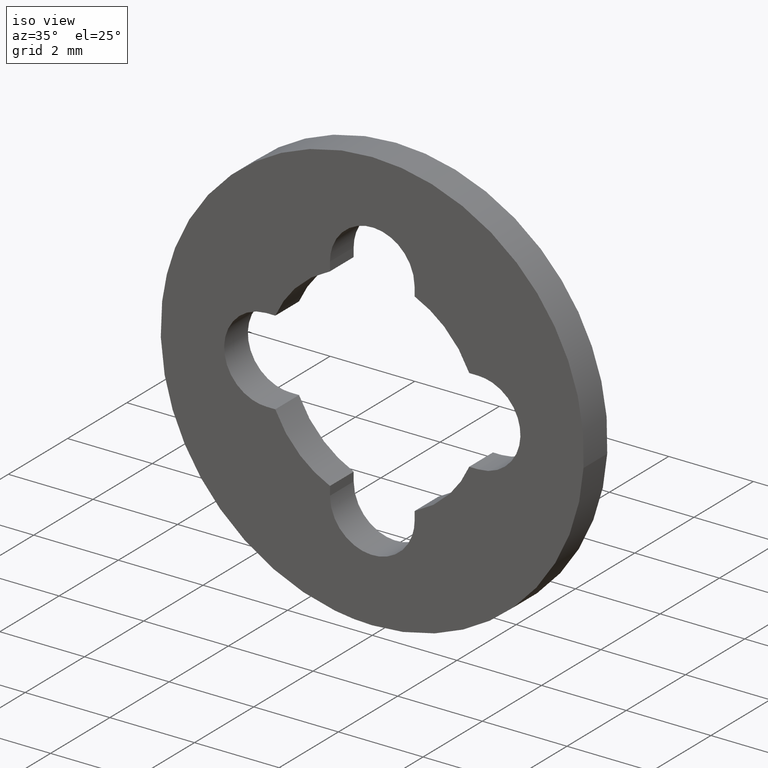
[diagram: clean part render]
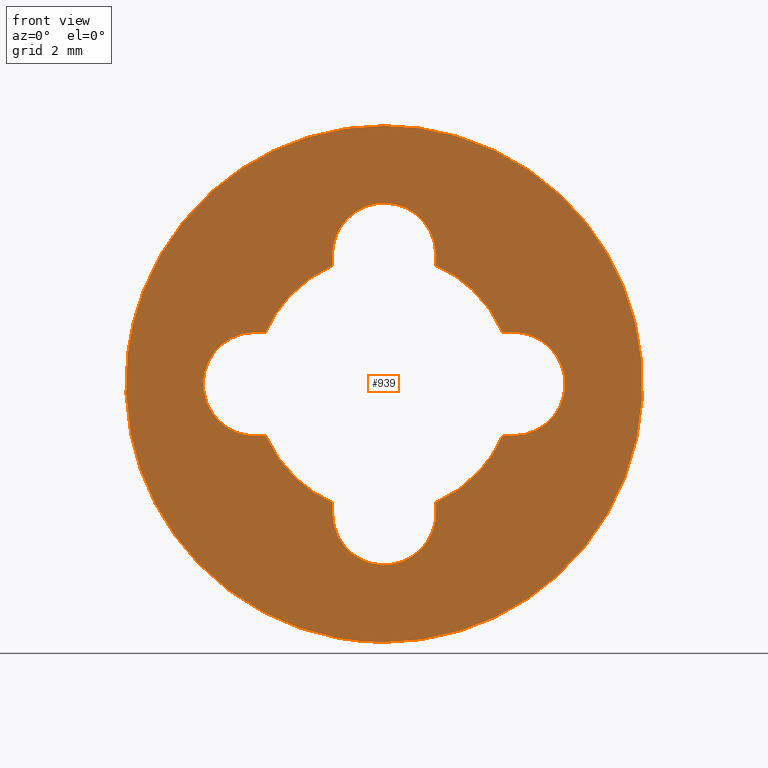
[diagram: tour spotlight — one face highlighted and labeled with its STEP entity id]
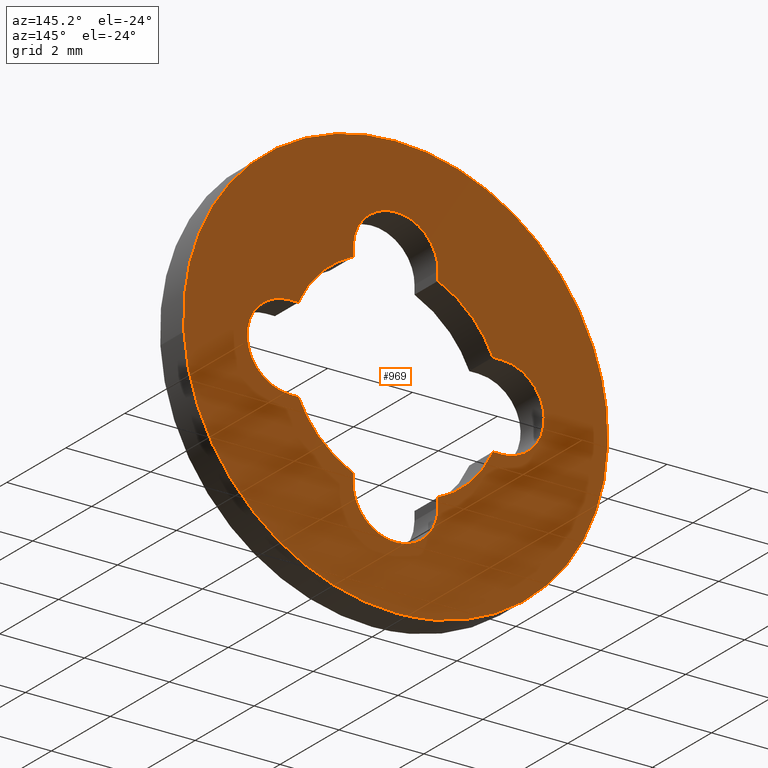
[diagram: tour spotlight — one face highlighted and labeled with its STEP entity id]
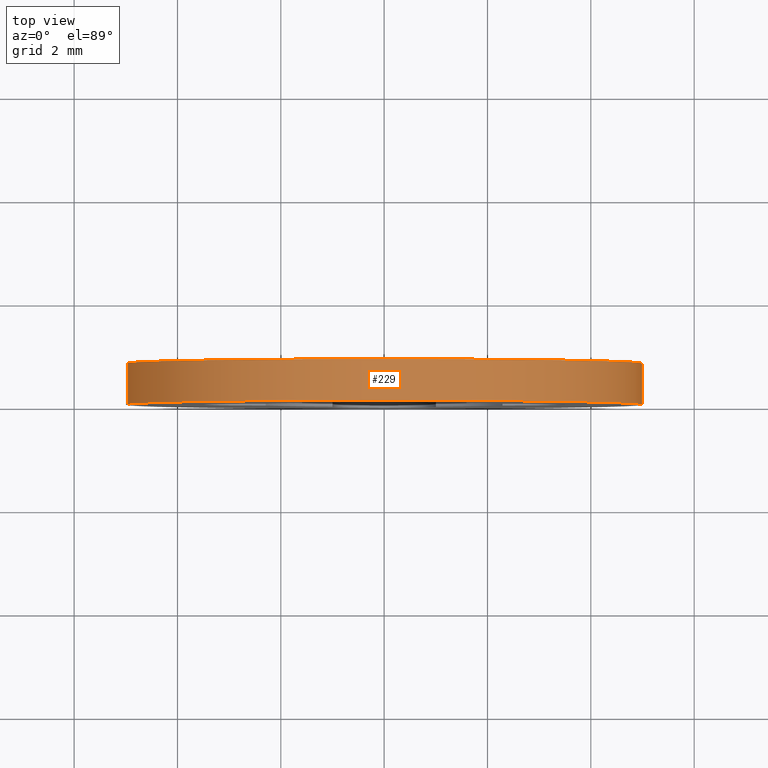
[diagram: tour spotlight — one face highlighted and labeled with its STEP entity id]
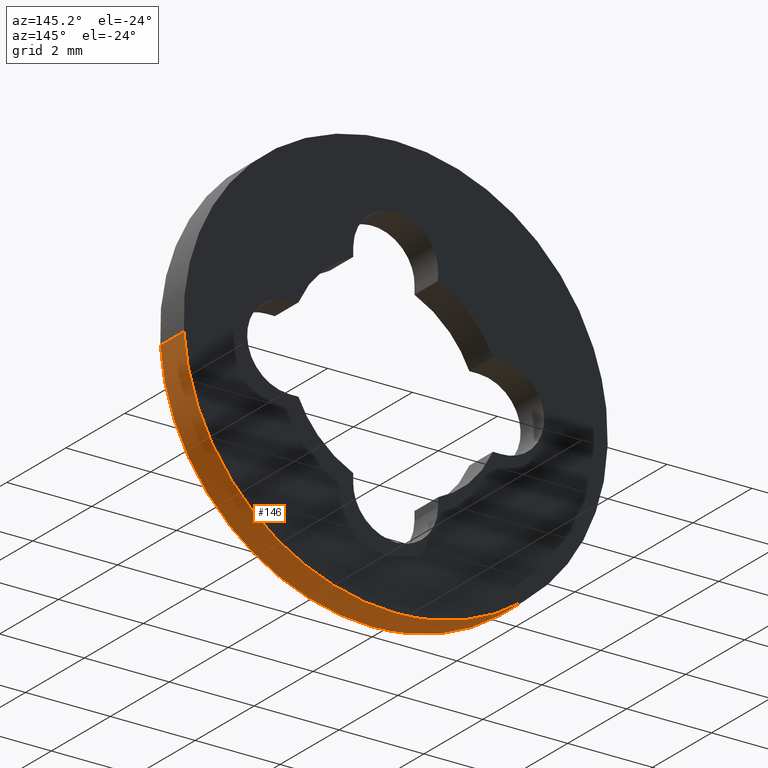
[diagram: tour spotlight — one face highlighted and labeled with its STEP entity id]
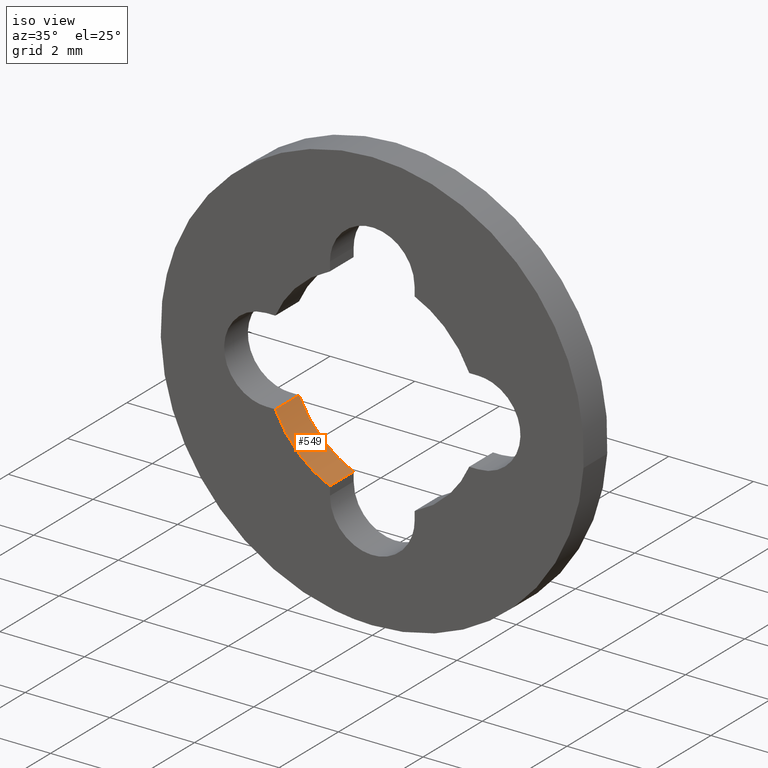
[diagram: tour spotlight — one face highlighted and labeled with its STEP entity id]
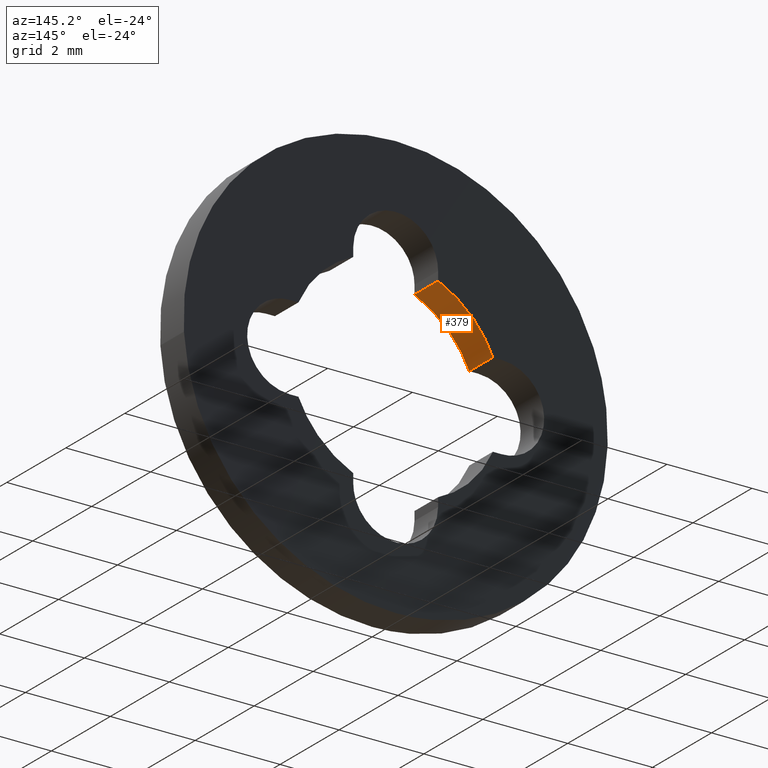
[diagram: tour spotlight — one face highlighted and labeled with its STEP entity id]
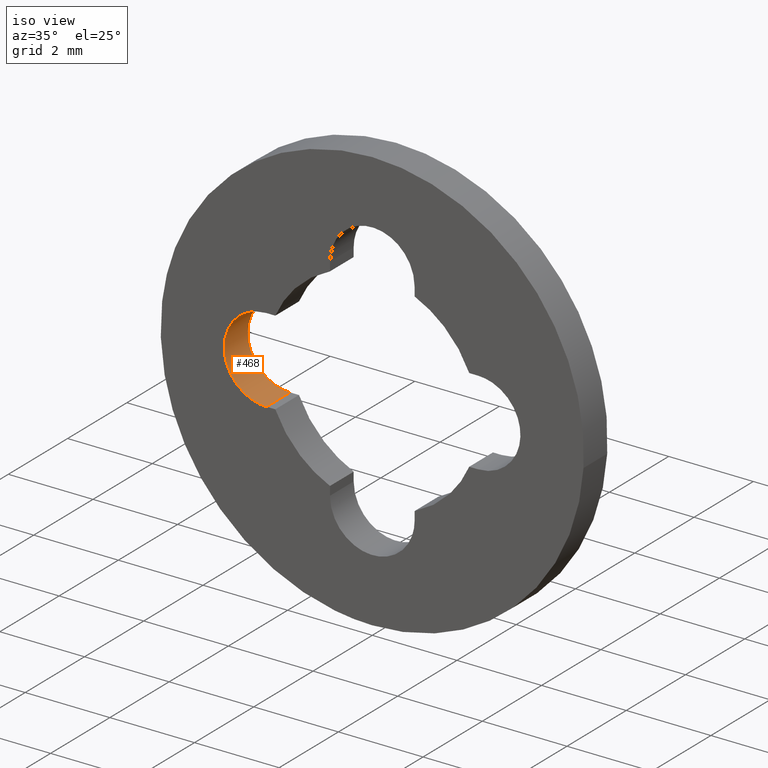
[diagram: tour spotlight — one face highlighted and labeled with its STEP entity id]
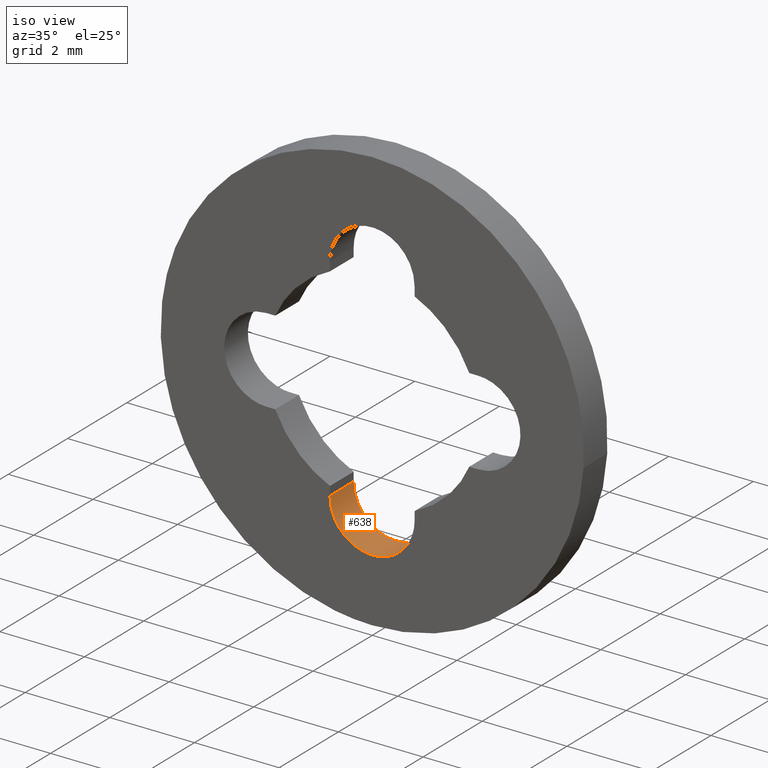
[diagram: tour spotlight — one face highlighted and labeled with its STEP entity id]
A machine part: a face-by-face anatomy tour. The part has 20 B-rep faces; the first image is the clean iso view, then the 8 largest visible faces are spotlighted one at a time (largest first), each with its STEP entity span.

Face 1 — front view, entity #939. In plain terms, the highlighted face is a freeform B-spline surface patch.
Definition (entity closure, byte-faithful):
#66=CARTESIAN_POINT('',(-4.965048007634929,3.045997E-014,0.590168011561354));
#67=VERTEX_POINT('',#66);
#68=CARTESIAN_POINT('',(0.0,0.0,-5.0));
#69=VERTEX_POINT('',#68);
#70=CARTESIAN_POINT('',(-4.965048007634929,3.045997E-014,0.590168011561354));
#71=CARTESIAN_POINT('',(-5.000000000000001,0.0,0.296119000685819));
#72=CARTESIAN_POINT('',(-5.0,0.0,0.0));
#73=CARTESIAN_POINT('',(-5.000000000000001,0.0,-5.000000000000001));
#74=CARTESIAN_POINT('',(0.0,0.0,-5.0));
#82=(BOUNDED_CURVE()B_SPLINE_CURVE(2,(#70,#71,#72,#73,#74),.UNSPECIFIED.,.F.,.U.)B_SPLINE_CURVE_WITH_KNOTS((3,2,3),(0.229562581136241,0.250000000000000,0.500000000000000),.UNSPECIFIED.)CURVE()GEOMETRIC_REPRESENTATION_ITEM()RATIONAL_B_SPLINE_CURVE((0.956026965128767,0.976056074419019,1.0,0.707106781186548,1.0))REPRESENTATION_ITEM(''));
#83=EDGE_CURVE('',#67,#69,#82,.T.);
#124=CARTESIAN_POINT('',(4.990674101339240,2.014708E-014,-0.305240911770624));
#125=VERTEX_POINT('',#124);
#131=CARTESIAN_POINT('',(0.0,0.0,-5.0));
#132=CARTESIAN_POINT('',(4.703532020823824,0.0,-4.999999999999999));
#133=CARTESIAN_POINT('',(4.990674101339240,2.014708E-014,-0.305240911770624));
#141=(BOUNDED_CURVE()B_SPLINE_CURVE(2,(#131,#132,#133),.UNSPECIFIED.,.F.,.U.)B_SPLINE_CURVE_WITH_KNOTS((3,3),(0.500000000000000,0.739333023987528),.UNSPECIFIED.)CURVE()GEOMETRIC_REPRESENTATION_ITEM()RATIONAL_B_SPLINE_CURVE((1.0,0.719603920943743,0.976072174005725))REPRESENTATION_ITEM(''));
#142=EDGE_CURVE('',#69,#125,#141,.T.);
#165=CARTESIAN_POINT('',(0.0,0.0,5.0));
#166=VERTEX_POINT('',#165);
#167=CARTESIAN_POINT('',(0.0,0.0,5.0));
#168=CARTESIAN_POINT('',(-4.440875477595059,0.0,5.000000000000001));
#169=CARTESIAN_POINT('',(-4.965048007634929,3.045997E-014,0.590168011561354));
#177=(BOUNDED_CURVE()B_SPLINE_CURVE(2,(#167,#168,#169),.UNSPECIFIED.,.F.,.U.)B_SPLINE_CURVE_WITH_KNOTS((3,3),(0.0,0.229562581136241),.UNSPECIFIED.)CURVE()GEOMETRIC_REPRESENTATION_ITEM()RATIONAL_B_SPLINE_CURVE((1.0,0.731050706767529,0.956026965128767))REPRESENTATION_ITEM(''));
#178=EDGE_CURVE('',#166,#67,#177,.T.);
#180=CARTESIAN_POINT('',(4.990674101339240,2.014708E-014,-0.305240911770624));
#181=CARTESIAN_POINT('',(5.000000000000001,0.0,-0.152762921037389));
#182=CARTESIAN_POINT('',(5.0,0.0,0.0));
#183=CARTESIAN_POINT('',(5.000000000000001,0.0,5.000000000000001));
#184=CARTESIAN_POINT('',(0.0,0.0,5.0));
#192=(BOUNDED_CURVE()B_SPLINE_CURVE(2,(#180,#181,#182,#183,#184),.UNSPECIFIED.,.F.,.U.)B_SPLINE_CURVE_WITH_KNOTS((3,2,3),(0.739333023987528,0.750000000000000,1.0),.UNSPECIFIED.)CURVE()GEOMETRIC_REPRESENTATION_ITEM()RATIONAL_B_SPLINE_CURVE((0.976072174005725,0.987502860242804,1.0,0.707106781186548,1.0))REPRESENTATION_ITEM(''));
#193=EDGE_CURVE('',#125,#166,#192,.T.);
#248=CARTESIAN_POINT('',(1.0,0.0,2.500000000000000));
#249=VERTEX_POINT('',#248);
#250=CARTESIAN_POINT('',(-1.0,0.0,2.500000000000000));
#251=VERTEX_POINT('',#250);
#252=CARTESIAN_POINT('',(1.0,0.0,2.500000000000000));
#253=CARTESIAN_POINT('',(1.0,0.0,3.499999999999999));
#254=CARTESIAN_POINT('',(0.0,0.0,3.500000000000000));
#255=CARTESIAN_POINT('',(-1.0,0.0,3.499999999999999));
#256=CARTESIAN_POINT('',(-1.0,0.0,2.500000000000000));
#264=(BOUNDED_CURVE()B_SPLINE_CURVE(2,(#252,#253,#254,#255,#256),.UNSPECIFIED.,.F.,.U.)B_SPLINE_CURVE_WITH_KNOTS((3,2,3),(0.0,0.500000000000000,1.0),.UNSPECIFIED.)CURVE()GEOMETRIC_REPRESENTATION_ITEM()RATIONAL_B_SPLINE_CURVE((1.0,0.707106781186548,1.0,0.707106781186548,1.0))REPRESENTATION_ITEM(''));
#265=EDGE_CURVE('',#249,#251,#264,.T.);
#304=CARTESIAN_POINT('',(-1.0,0.0,2.291287847477920));
#305=VERTEX_POINT('',#304);
#306=CARTESIAN_POINT('',(-1.0,0.0,2.291287847477920));
#307=CARTESIAN_POINT('',(-1.0,0.0,2.500000000000000));
#308=QUASI_UNIFORM_CURVE('',1,(#306,#307),.UNSPECIFIED.,.F.,.U.);
#309=EDGE_CURVE('',#305,#251,#308,.T.);
#341=CARTESIAN_POINT('',(-2.291287847477920,0.0,1.0));
#342=VERTEX_POINT('',#341);
#343=CARTESIAN_POINT('',(-1.000000000000000,0.0,2.291287847477920));
#344=CARTESIAN_POINT('',(-1.898952716879295,0.0,1.898952716879295));
#345=CARTESIAN_POINT('',(-2.291287847477920,0.0,1.000000000000000));
#353=(BOUNDED_CURVE()B_SPLINE_CURVE(2,(#343,#344,#345),.UNSPECIFIED.,.F.,.U.)CURVE()GEOMETRIC_REPRESENTATION_ITEM()QUASI_UNIFORM_CURVE()RATIONAL_B_SPLINE_CURVE((1.0,0.930916782315405,1.0))REPRESENTATION_ITEM(''));
#354=EDGE_CURVE('',#305,#342,#353,.T.);
#385=CARTESIAN_POINT('',(-2.500000000000000,0.0,1.0));
#386=VERTEX_POINT('',#385);
#387=CARTESIAN_POINT('',(-2.500000000000000,0.0,1.0));
#388=CARTESIAN_POINT('',(-2.291287847477920,0.0,1.0));
#389=QUASI_UNIFORM_CURVE('',1,(#387,#388),.UNSPECIFIED.,.F.,.U.);
#390=EDGE_CURVE('',#386,#342,#389,.T.);
#426=CARTESIAN_POINT('',(-2.500000000000000,0.0,-1.0));
#427=VERTEX_POINT('',#426);
#428=CARTESIAN_POINT('',(-2.500000000000000,0.0,1.0));
#429=CARTESIAN_POINT('',(-3.499999999999999,0.0,1.0));
#430=CARTESIAN_POINT('',(-3.500000000000000,0.0,0.0));
#431=CARTESIAN_POINT('',(-3.499999999999999,0.0,-1.0));
#432=CARTESIAN_POINT('',(-2.500000000000000,0.0,-1.0));
#440=(BOUNDED_CURVE()B_SPLINE_CURVE(2,(#428,#429,#430,#431,#432),.UNSPECIFIED.,.F.,.U.)B_SPLINE_CURVE_WITH_KNOTS((3,2,3),(0.0,0.500000000000000,1.0),.UNSPECIFIED.)CURVE()GEOMETRIC_REPRESENTATION_ITEM()RATIONAL_B_SPLINE_CURVE((1.0,0.707106781186548,1.0,0.707106781186548,1.0))REPRESENTATION_ITEM(''));
#441=EDGE_CURVE('',#386,#427,#440,.T.);
#474=CARTESIAN_POINT('',(-2.291287847477920,0.0,-1.0));
#475=VERTEX_POINT('',#474);
#476=CARTESIAN_POINT('',(-2.291287847477920,0.0,-1.0));
#477=CARTESIAN_POINT('',(-2.500000000000000,0.0,-1.0));
#478=QUASI_UNIFORM_CURVE('',1,(#476,#477),.UNSPECIFIED.,.F.,.U.);
#479=EDGE_CURVE('',#475,#427,#478,.T.);
#511=CARTESIAN_POINT('',(-1.0,0.0,-2.291287847477920));
#512=VERTEX_POINT('',#511);
#513=CARTESIAN_POINT('',(-2.291287847477920,0.0,-1.000000000000000));
#514=CARTESIAN_POINT('',(-1.898952716879295,0.0,-1.898952716879295));
#515=CARTESIAN_POINT('',(-1.0,0.0,-2.291287847477920));
#523=(BOUNDED_CURVE()B_SPLINE_CURVE(2,(#513,#514,#515),.UNSPECIFIED.,.F.,.U.)CURVE()GEOMETRIC_REPRESENTATION_ITEM()QUASI_UNIFORM_CURVE()RATIONAL_B_SPLINE_CURVE((1.0,0.930916782315405,1.0))REPRESENTATION_ITEM(''));
#524=EDGE_CURVE('',#475,#512,#523,.T.);
#555=CARTESIAN_POINT('',(-1.0,0.0,-2.500000000000000));
#556=VERTEX_POINT('',#555);
#557=CARTESIAN_POINT('',(-1.0,0.0,-2.500000000000000));
#558=CARTESIAN_POINT('',(-1.0,0.0,-2.291287847477920));
#559=QUASI_UNIFORM_CURVE('',1,(#557,#558),.UNSPECIFIED.,.F.,.U.);
#560=EDGE_CURVE('',#556,#512,#559,.T.);
#596=CARTESIAN_POINT('',(1.0,0.0,-2.500000000000000));
#597=VERTEX_POINT('',#596);
#598=CARTESIAN_POINT('',(-1.0,0.0,-2.500000000000000));
#599=CARTESIAN_POINT('',(-1.0,0.0,-3.499999999999999));
#600=CARTESIAN_POINT('',(0.0,0.0,-3.500000000000000));
#601=CARTESIAN_POINT('',(1.0,0.0,-3.499999999999999));
#602=CARTESIAN_POINT('',(1.0,0.0,-2.500000000000000));
#610=(BOUNDED_CURVE()B_SPLINE_CURVE(2,(#598,#599,#600,#601,#602),.UNSPECIFIED.,.F.,.U.)B_SPLINE_CURVE_WITH_KNOTS((3,2,3),(0.0,0.500000000000000,1.0),.UNSPECIFIED.)CURVE()GEOMETRIC_REPRESENTATION_ITEM()RATIONAL_B_SPLINE_CURVE((1.0,0.707106781186548,1.0,0.707106781186548,1.0))REPRESENTATION_ITEM(''));
#611=EDGE_CURVE('',#556,#597,#610,.T.);
#644=CARTESIAN_POINT('',(1.0,0.0,-2.291287847477920));
#645=VERTEX_POINT('',#644);
#646=CARTESIAN_POINT('',(1.0,0.0,-2.291287847477920));
#647=CARTESIAN_POINT('',(1.0,0.0,-2.500000000000000));
#648=QUASI_UNIFORM_CURVE('',1,(#646,#647),.UNSPECIFIED.,.F.,.U.);
#649=EDGE_CURVE('',#645,#597,#648,.T.);
#681=CARTESIAN_POINT('',(2.291287847477920,0.0,-1.0));
#682=VERTEX_POINT('',#681);
#683=CARTESIAN_POINT('',(0.999999999999999,0.0,-2.291287847477920));
#684=CARTESIAN_POINT('',(1.898952716879295,0.0,-1.898952716879295));
#685=CARTESIAN_POINT('',(2.291287847477920,0.0,-1.0));
#693=(BOUNDED_CURVE()B_SPLINE_CURVE(2,(#683,#684,#685),.UNSPECIFIED.,.F.,.U.)CURVE()GEOMETRIC_REPRESENTATION_ITEM()QUASI_UNIFORM_CURVE()RATIONAL_B_SPLINE_CURVE((1.0,0.930916782315405,1.0))REPRESENTATION_ITEM(''));
#694=EDGE_CURVE('',#645,#682,#693,.T.);
#725=CARTESIAN_POINT('',(2.500000000000000,0.0,-1.0));
#726=VERTEX_POINT('',#725);
#727=CARTESIAN_POINT('',(2.500000000000000,0.0,-1.0));
#728=CARTESIAN_POINT('',(2.291287847477920,0.0,-1.0));
#729=QUASI_UNIFORM_CURVE('',1,(#727,#728),.UNSPECIFIED.,.F.,.U.);
#730=EDGE_CURVE('',#726,#682,#729,.T.);
#766=CARTESIAN_POINT('',(2.500000000000000,0.0,1.0));
#767=VERTEX_POINT('',#766);
#768=CARTESIAN_POINT('',(2.500000000000000,0.0,-1.0));
#769=CARTESIAN_POINT('',(3.499999999999999,0.0,-1.0));
#770=CARTESIAN_POINT('',(3.500000000000000,0.0,0.0));
#771=CARTESIAN_POINT('',(3.499999999999999,0.0,1.0));
#772=CARTESIAN_POINT('',(2.500000000000000,0.0,1.0));
#780=(BOUNDED_CURVE()B_SPLINE_CURVE(2,(#768,#769,#770,#771,#772),.UNSPECIFIED.,.F.,.U.)B_SPLINE_CURVE_WITH_KNOTS((3,2,3),(0.0,0.500000000000000,1.0),.UNSPECIFIED.)CURVE()GEOMETRIC_REPRESENTATION_ITEM()RATIONAL_B_SPLINE_CURVE((1.0,0.707106781186548,1.0,0.707106781186548,1.0))REPRESENTATION_ITEM(''));
#781=EDGE_CURVE('',#726,#767,#780,.T.);
#814=CARTESIAN_POINT('',(2.291287847477920,0.0,1.0));
#815=VERTEX_POINT('',#814);
#816=CARTESIAN_POINT('',(2.291287847477920,0.0,1.0));
#817=CARTESIAN_POINT('',(2.500000000000000,0.0,1.0));
#818=QUASI_UNIFORM_CURVE('',1,(#816,#817),.UNSPECIFIED.,.F.,.U.);
#819=EDGE_CURVE('',#815,#767,#818,.T.);
#851=CARTESIAN_POINT('',(1.0,0.0,2.291287847477920));
#852=VERTEX_POINT('',#851);
#853=CARTESIAN_POINT('',(2.291287847477920,0.0,0.999999999999999));
#854=CARTESIAN_POINT('',(1.898952716879294,0.0,1.898952716879294));
#855=CARTESIAN_POINT('',(1.0,0.0,2.291287847477920));
#863=(BOUNDED_CURVE()B_SPLINE_CURVE(2,(#853,#854,#855),.UNSPECIFIED.,.F.,.U.)CURVE()GEOMETRIC_REPRESENTATION_ITEM()QUASI_UNIFORM_CURVE()RATIONAL_B_SPLINE_CURVE((1.0,0.930916782315405,1.0))REPRESENTATION_ITEM(''));
#864=EDGE_CURVE('',#815,#852,#863,.T.);
#895=CARTESIAN_POINT('',(1.0,0.0,2.500000000000000));
#896=CARTESIAN_POINT('',(1.0,0.0,2.291287847477920));
#897=QUASI_UNIFORM_CURVE('',1,(#895,#896),.UNSPECIFIED.,.F.,.U.);
#898=EDGE_CURVE('',#249,#852,#897,.T.);
#910=CARTESIAN_POINT('',(-5.499409322677550,0.0,5.499499980618060));
#911=CARTESIAN_POINT('',(5.499378298459944,0.0,5.499499980618060));
#912=CARTESIAN_POINT('',(-5.499409322677550,0.0,-5.499500248838961));
#913=CARTESIAN_POINT('',(5.499378298459944,0.0,-5.499500248838961));
#914=B_SPLINE_SURFACE_WITH_KNOTS('',1,1,((#910,#912),(#911,#913)),.UNSPECIFIED.,.F.,.F.,.U.,(2,2),(2,2),(0.0,10.998787621137501),(0.0,10.999000229457019),.UNSPECIFIED.);
#915=ORIENTED_EDGE('',*,*,#178,.T.);
#916=ORIENTED_EDGE('',*,*,#83,.T.);
#917=ORIENTED_EDGE('',*,*,#142,.T.);
#918=ORIENTED_EDGE('',*,*,#193,.T.);
#919=EDGE_LOOP('',(#915,#916,#917,#918));
#920=FACE_OUTER_BOUND('',#919,.T.);
#921=ORIENTED_EDGE('',*,*,#265,.F.);
#922=ORIENTED_EDGE('',*,*,#898,.T.);
#923=ORIENTED_EDGE('',*,*,#864,.F.);
#924=ORIENTED_EDGE('',*,*,#819,.T.);
#925=ORIENTED_EDGE('',*,*,#781,.F.);
#926=ORIENTED_EDGE('',*,*,#730,.T.);
#927=ORIENTED_EDGE('',*,*,#694,.F.);
#928=ORIENTED_EDGE('',*,*,#649,.T.);
#929=ORIENTED_EDGE('',*,*,#611,.F.);
#930=ORIENTED_EDGE('',*,*,#560,.T.);
#931=ORIENTED_EDGE('',*,*,#524,.F.);
#932=ORIENTED_EDGE('',*,*,#479,.T.);
#933=ORIENTED_EDGE('',*,*,#441,.F.);
#934=ORIENTED_EDGE('',*,*,#390,.T.);
#935=ORIENTED_EDGE('',*,*,#354,.F.);
#936=ORIENTED_EDGE('',*,*,#309,.T.);
#937=EDGE_LOOP('',(#921,#922,#923,#924,#925,#926,#927,#928,#929,#930,#931,#932,#933,#934,#935,#936));
#938=FACE_BOUND('',#937,.T.);
#939=ADVANCED_FACE('',(#920,#938),#914,.F.);

Face 2 — auxiliary view, entity #969. In plain terms, the highlighted face is a freeform B-spline surface patch.
Definition (entity closure, byte-faithful):
#85=CARTESIAN_POINT('',(-4.965048002999415,0.800000000000023,0.590168050559857));
#86=VERTEX_POINT('',#85);
#92=CARTESIAN_POINT('',(0.0,0.800000000000023,-5.0));
#93=VERTEX_POINT('',#92);
#94=CARTESIAN_POINT('',(-4.965048002999415,0.800000000000023,0.590168050559856));
#95=CARTESIAN_POINT('',(-5.0,0.800000000000023,0.296119020391210));
#96=CARTESIAN_POINT('',(-5.0,0.800000000000023,0.0));
#97=CARTESIAN_POINT('',(-5.000000000000001,0.800000000000023,-5.000000000000001));
#98=CARTESIAN_POINT('',(0.0,0.800000000000023,-5.0));
#106=(BOUNDED_CURVE()B_SPLINE_CURVE(2,(#94,#95,#96,#97,#98),.UNSPECIFIED.,.F.,.U.)B_SPLINE_CURVE_WITH_KNOTS((3,2,3),(0.229562579808786,0.250000000000000,0.500000000000000),.UNSPECIFIED.)CURVE()GEOMETRIC_REPRESENTATION_ITEM()RATIONAL_B_SPLINE_CURVE((0.956026962526900,0.976056072863809,1.0,0.707106781186548,1.0))REPRESENTATION_ITEM(''));
#107=EDGE_CURVE('',#86,#93,#106,.T.);
#109=CARTESIAN_POINT('',(4.990674099992546,0.800000000000023,-0.305240933789139));
#110=VERTEX_POINT('',#109);
#111=CARTESIAN_POINT('',(0.0,0.800000000000023,-5.0));
#112=CARTESIAN_POINT('',(4.703532000033385,0.800000000000023,-5.000000000000001));
#113=CARTESIAN_POINT('',(4.990674099992546,0.800000000000023,-0.305240933789139));
#121=(BOUNDED_CURVE()B_SPLINE_CURVE(2,(#111,#112,#113),.UNSPECIFIED.,.F.,.U.)B_SPLINE_CURVE_WITH_KNOTS((3,3),(0.500000000000000,0.739333023226263),.UNSPECIFIED.)CURVE()GEOMETRIC_REPRESENTATION_ITEM()RATIONAL_B_SPLINE_CURVE((1.0,0.719603921835620,0.976072172374189))REPRESENTATION_ITEM(''));
#122=EDGE_CURVE('',#93,#110,#121,.T.);
#196=CARTESIAN_POINT('',(0.0,0.800000000000023,5.0));
#197=VERTEX_POINT('',#196);
#198=CARTESIAN_POINT('',(4.990674099992546,0.800000000000023,-0.305240933789139));
#199=CARTESIAN_POINT('',(4.999999999999999,0.800000000000023,-0.152762932077514));
#200=CARTESIAN_POINT('',(5.0,0.800000000000023,0.0));
#201=CARTESIAN_POINT('',(5.000000000000001,0.800000000000023,5.000000000000001));
#202=CARTESIAN_POINT('',(0.0,0.800000000000023,5.0));
#210=(BOUNDED_CURVE()B_SPLINE_CURVE(2,(#198,#199,#200,#201,#202),.UNSPECIFIED.,.F.,.U.)B_SPLINE_CURVE_WITH_KNOTS((3,2,3),(0.739333023226263,0.750000000000000,1.0),.UNSPECIFIED.)CURVE()GEOMETRIC_REPRESENTATION_ITEM()RATIONAL_B_SPLINE_CURVE((0.976072172374189,0.987502859350927,1.0,0.707106781186548,1.0))REPRESENTATION_ITEM(''));
#211=EDGE_CURVE('',#110,#197,#210,.T.);
#213=CARTESIAN_POINT('',(0.0,0.800000000000023,5.0));
#214=CARTESIAN_POINT('',(-4.440875442468178,0.800000000000023,5.0));
#215=CARTESIAN_POINT('',(-4.965048002999415,0.800000000000023,0.590168050559856));
#223=(BOUNDED_CURVE()B_SPLINE_CURVE(2,(#213,#214,#215),.UNSPECIFIED.,.F.,.U.)B_SPLINE_CURVE_WITH_KNOTS((3,3),(0.0,0.229562579808786),.UNSPECIFIED.)CURVE()GEOMETRIC_REPRESENTATION_ITEM()RATIONAL_B_SPLINE_CURVE((1.0,0.731050708322738,0.956026962526900))REPRESENTATION_ITEM(''));
#224=EDGE_CURVE('',#197,#86,#223,.T.);
#267=CARTESIAN_POINT('',(-1.0,0.800000000000023,2.500000000000000));
#268=VERTEX_POINT('',#267);
#274=CARTESIAN_POINT('',(1.0,0.800000000000023,2.500000000000000));
#275=VERTEX_POINT('',#274);
#276=CARTESIAN_POINT('',(1.0,0.800000000000023,2.500000000000000));
#277=CARTESIAN_POINT('',(1.0,0.800000000000023,3.499999999999999));
#278=CARTESIAN_POINT('',(0.0,0.800000000000023,3.500000000000000));
#279=CARTESIAN_POINT('',(-1.0,0.800000000000023,3.499999999999999));
#280=CARTESIAN_POINT('',(-1.0,0.800000000000023,2.500000000000000));
#288=(BOUNDED_CURVE()B_SPLINE_CURVE(2,(#276,#277,#278,#279,#280),.UNSPECIFIED.,.F.,.U.)B_SPLINE_CURVE_WITH_KNOTS((3,2,3),(0.0,0.500000000000000,1.0),.UNSPECIFIED.)CURVE()GEOMETRIC_REPRESENTATION_ITEM()RATIONAL_B_SPLINE_CURVE((1.0,0.707106781186548,1.0,0.707106781186548,1.0))REPRESENTATION_ITEM(''));
#289=EDGE_CURVE('',#275,#268,#288,.T.);
#311=CARTESIAN_POINT('',(-1.0,0.800000000000023,2.291287847477920));
#312=VERTEX_POINT('',#311);
#318=CARTESIAN_POINT('',(-1.0,0.800000000000023,2.291287847477920));
#319=CARTESIAN_POINT('',(-1.0,0.800000000000023,2.500000000000000));
#320=QUASI_UNIFORM_CURVE('',1,(#318,#319),.UNSPECIFIED.,.F.,.U.);
#321=EDGE_CURVE('',#312,#268,#320,.T.);
#356=CARTESIAN_POINT('',(-2.291287847477920,0.800000000000023,1.0));
#357=VERTEX_POINT('',#356);
#363=CARTESIAN_POINT('',(-1.000000000000000,0.800000000000023,2.291287847477920));
#364=CARTESIAN_POINT('',(-1.898952716879295,0.800000000000023,1.898952716879295));
#365=CARTESIAN_POINT('',(-2.291287847477920,0.800000000000023,1.000000000000000));
#373=(BOUNDED_CURVE()B_SPLINE_CURVE(2,(#363,#364,#365),.UNSPECIFIED.,.F.,.U.)CURVE()GEOMETRIC_REPRESENTATION_ITEM()QUASI_UNIFORM_CURVE()RATIONAL_B_SPLINE_CURVE((1.0,0.930916782315405,1.0))REPRESENTATION_ITEM(''));
#374=EDGE_CURVE('',#312,#357,#373,.T.);
#392=CARTESIAN_POINT('',(-2.500000000000000,0.800000000000023,1.0));
#393=VERTEX_POINT('',#392);
#399=CARTESIAN_POINT('',(-2.500000000000000,0.800000000000023,1.0));
#400=CARTESIAN_POINT('',(-2.291287847477920,0.800000000000023,1.0));
#401=QUASI_UNIFORM_CURVE('',1,(#399,#400),.UNSPECIFIED.,.F.,.U.);
#402=EDGE_CURVE('',#393,#357,#401,.T.);
#443=CARTESIAN_POINT('',(-2.500000000000000,0.800000000000023,-1.0));
#444=VERTEX_POINT('',#443);
#450=CARTESIAN_POINT('',(-2.500000000000000,0.800000000000023,1.0));
#451=CARTESIAN_POINT('',(-3.499999999999999,0.800000000000023,1.0));
#452=CARTESIAN_POINT('',(-3.500000000000000,0.800000000000023,0.0));
#453=CARTESIAN_POINT('',(-3.499999999999999,0.800000000000023,-1.0));
#454=CARTESIAN_POINT('',(-2.500000000000000,0.800000000000023,-1.0));
#462=(BOUNDED_CURVE()B_SPLINE_CURVE(2,(#450,#451,#452,#453,#454),.UNSPECIFIED.,.F.,.U.)B_SPLINE_CURVE_WITH_KNOTS((3,2,3),(0.0,0.500000000000000,1.0),.UNSPECIFIED.)CURVE()GEOMETRIC_REPRESENTATION_ITEM()RATIONAL_B_SPLINE_CURVE((1.0,0.707106781186548,1.0,0.707106781186548,1.0))REPRESENTATION_ITEM(''));
#463=EDGE_CURVE('',#393,#444,#462,.T.);
#481=CARTESIAN_POINT('',(-2.291287847477920,0.800000000000023,-1.0));
#482=VERTEX_POINT('',#481);
#488=CARTESIAN_POINT('',(-2.291287847477920,0.800000000000023,-1.0));
#489=CARTESIAN_POINT('',(-2.500000000000000,0.800000000000023,-1.0));
#490=QUASI_UNIFORM_CURVE('',1,(#488,#489),.UNSPECIFIED.,.F.,.U.);
#491=EDGE_CURVE('',#482,#444,#490,.T.);
#526=CARTESIAN_POINT('',(-1.0,0.800000000000023,-2.291287847477920));
#527=VERTEX_POINT('',#526);
#533=CARTESIAN_POINT('',(-2.291287847477920,0.800000000000023,-1.000000000000000));
#534=CARTESIAN_POINT('',(-1.898952716879295,0.800000000000023,-1.898952716879295));
#535=CARTESIAN_POINT('',(-1.0,0.800000000000023,-2.291287847477920));
#543=(BOUNDED_CURVE()B_SPLINE_CURVE(2,(#533,#534,#535),.UNSPECIFIED.,.F.,.U.)CURVE()GEOMETRIC_REPRESENTATION_ITEM()QUASI_UNIFORM_CURVE()RATIONAL_B_SPLINE_CURVE((1.0,0.930916782315405,1.0))REPRESENTATION_ITEM(''));
#544=EDGE_CURVE('',#482,#527,#543,.T.);
#562=CARTESIAN_POINT('',(-1.0,0.800000000000023,-2.500000000000000));
#563=VERTEX_POINT('',#562);
#569=CARTESIAN_POINT('',(-1.0,0.800000000000023,-2.500000000000000));
#570=CARTESIAN_POINT('',(-1.0,0.800000000000023,-2.291287847477920));
#571=QUASI_UNIFORM_CURVE('',1,(#569,#570),.UNSPECIFIED.,.F.,.U.);
#572=EDGE_CURVE('',#563,#527,#571,.T.);
#613=CARTESIAN_POINT('',(1.0,0.800000000000023,-2.500000000000000));
#614=VERTEX_POINT('',#613);
#620=CARTESIAN_POINT('',(-1.0,0.800000000000023,-2.500000000000000));
#621=CARTESIAN_POINT('',(-1.0,0.800000000000023,-3.499999999999999));
#622=CARTESIAN_POINT('',(0.0,0.800000000000023,-3.500000000000000));
#623=CARTESIAN_POINT('',(1.0,0.800000000000023,-3.499999999999999));
#624=CARTESIAN_POINT('',(1.0,0.800000000000023,-2.500000000000000));
#632=(BOUNDED_CURVE()B_SPLINE_CURVE(2,(#620,#621,#622,#623,#624),.UNSPECIFIED.,.F.,.U.)B_SPLINE_CURVE_WITH_KNOTS((3,2,3),(0.0,0.500000000000000,1.0),.UNSPECIFIED.)CURVE()GEOMETRIC_REPRESENTATION_ITEM()RATIONAL_B_SPLINE_CURVE((1.0,0.707106781186548,1.0,0.707106781186548,1.0))REPRESENTATION_ITEM(''));
#633=EDGE_CURVE('',#563,#614,#632,.T.);
#651=CARTESIAN_POINT('',(1.0,0.800000000000023,-2.291287847477920));
#652=VERTEX_POINT('',#651);
#658=CARTESIAN_POINT('',(1.0,0.800000000000023,-2.291287847477920));
#659=CARTESIAN_POINT('',(1.0,0.800000000000023,-2.500000000000000));
#660=QUASI_UNIFORM_CURVE('',1,(#658,#659),.UNSPECIFIED.,.F.,.U.);
#661=EDGE_CURVE('',#652,#614,#660,.T.);
#696=CARTESIAN_POINT('',(2.291287847477920,0.800000000000023,-1.0));
#697=VERTEX_POINT('',#696);
#703=CARTESIAN_POINT('',(0.999999999999999,0.800000000000023,-2.291287847477920));
#704=CARTESIAN_POINT('',(1.898952716879295,0.800000000000023,-1.898952716879295));
#705=CARTESIAN_POINT('',(2.291287847477920,0.800000000000023,-1.0));
#713=(BOUNDED_CURVE()B_SPLINE_CURVE(2,(#703,#704,#705),.UNSPECIFIED.,.F.,.U.)CURVE()GEOMETRIC_REPRESENTATION_ITEM()QUASI_UNIFORM_CURVE()RATIONAL_B_SPLINE_CURVE((1.0,0.930916782315405,1.0))REPRESENTATION_ITEM(''));
#714=EDGE_CURVE('',#652,#697,#713,.T.);
#732=CARTESIAN_POINT('',(2.500000000000000,0.800000000000023,-1.0));
#733=VERTEX_POINT('',#732);
#739=CARTESIAN_POINT('',(2.500000000000000,0.800000000000023,-1.0));
#740=CARTESIAN_POINT('',(2.291287847477920,0.800000000000023,-1.0));
#741=QUASI_UNIFORM_CURVE('',1,(#739,#740),.UNSPECIFIED.,.F.,.U.);
#742=EDGE_CURVE('',#733,#697,#741,.T.);
#783=CARTESIAN_POINT('',(2.500000000000000,0.800000000000023,1.0));
#784=VERTEX_POINT('',#783);
#790=CARTESIAN_POINT('',(2.500000000000000,0.800000000000023,-1.0));
#791=CARTESIAN_POINT('',(3.499999999999999,0.800000000000023,-1.0));
#792=CARTESIAN_POINT('',(3.500000000000000,0.800000000000023,0.0));
#793=CARTESIAN_POINT('',(3.499999999999999,0.800000000000023,1.0));
#794=CARTESIAN_POINT('',(2.500000000000000,0.800000000000023,1.0));
#802=(BOUNDED_CURVE()B_SPLINE_CURVE(2,(#790,#791,#792,#793,#794),.UNSPECIFIED.,.F.,.U.)B_SPLINE_CURVE_WITH_KNOTS((3,2,3),(0.0,0.500000000000000,1.0),.UNSPECIFIED.)CURVE()GEOMETRIC_REPRESENTATION_ITEM()RATIONAL_B_SPLINE_CURVE((1.0,0.707106781186548,1.0,0.707106781186548,1.0))REPRESENTATION_ITEM(''));
#803=EDGE_CURVE('',#733,#784,#802,.T.);
#821=CARTESIAN_POINT('',(2.291287847477920,0.800000000000023,1.0));
#822=VERTEX_POINT('',#821);
#828=CARTESIAN_POINT('',(2.291287847477920,0.800000000000023,1.0));
#829=CARTESIAN_POINT('',(2.500000000000000,0.800000000000023,1.0));
#830=QUASI_UNIFORM_CURVE('',1,(#828,#829),.UNSPECIFIED.,.F.,.U.);
#831=EDGE_CURVE('',#822,#784,#830,.T.);
#866=CARTESIAN_POINT('',(1.0,0.800000000000023,2.291287847477920));
#867=VERTEX_POINT('',#866);
#873=CARTESIAN_POINT('',(2.291287847477920,0.800000000000023,0.999999999999999));
#874=CARTESIAN_POINT('',(1.898952716879294,0.800000000000023,1.898952716879294));
#875=CARTESIAN_POINT('',(1.0,0.800000000000023,2.291287847477920));
#883=(BOUNDED_CURVE()B_SPLINE_CURVE(2,(#873,#874,#875),.UNSPECIFIED.,.F.,.U.)CURVE()GEOMETRIC_REPRESENTATION_ITEM()QUASI_UNIFORM_CURVE()RATIONAL_B_SPLINE_CURVE((1.0,0.930916782315405,1.0))REPRESENTATION_ITEM(''));
#884=EDGE_CURVE('',#822,#867,#883,.T.);
#901=CARTESIAN_POINT('',(1.0,0.800000000000023,2.500000000000000));
#902=CARTESIAN_POINT('',(1.0,0.800000000000023,2.291287847477920));
#903=QUASI_UNIFORM_CURVE('',1,(#901,#902),.UNSPECIFIED.,.F.,.U.);
#904=EDGE_CURVE('',#275,#867,#903,.T.);
#940=CARTESIAN_POINT('',(-5.499409322677554,0.800000000000000,5.499499980618060));
#941=CARTESIAN_POINT('',(5.499378298459948,0.800000000000000,5.499499980618060));
#942=CARTESIAN_POINT('',(-5.499409322677554,0.800000000000000,-5.499500248838961));
#943=CARTESIAN_POINT('',(5.499378298459948,0.800000000000000,-5.499500248838961));
#944=B_SPLINE_SURFACE_WITH_KNOTS('',1,1,((#940,#942),(#941,#943)),.UNSPECIFIED.,.F.,.F.,.U.,(2,2),(2,2),(0.0,10.998787621137501),(0.0,10.999000229457019),.UNSPECIFIED.);
#945=ORIENTED_EDGE('',*,*,#211,.F.);
#946=ORIENTED_EDGE('',*,*,#122,.F.);
#947=ORIENTED_EDGE('',*,*,#107,.F.);
#948=ORIENTED_EDGE('',*,*,#224,.F.);
#949=EDGE_LOOP('',(#945,#946,#947,#948));
#950=FACE_OUTER_BOUND('',#949,.T.);
#951=ORIENTED_EDGE('',*,*,#904,.F.);
#952=ORIENTED_EDGE('',*,*,#289,.T.);
#953=ORIENTED_EDGE('',*,*,#321,.F.);
#954=ORIENTED_EDGE('',*,*,#374,.T.);
#955=ORIENTED_EDGE('',*,*,#402,.F.);
#956=ORIENTED_EDGE('',*,*,#463,.T.);
#957=ORIENTED_EDGE('',*,*,#491,.F.);
#958=ORIENTED_EDGE('',*,*,#544,.T.);
#959=ORIENTED_EDGE('',*,*,#572,.F.);
#960=ORIENTED_EDGE('',*,*,#633,.T.);
#961=ORIENTED_EDGE('',*,*,#661,.F.);
#962=ORIENTED_EDGE('',*,*,#714,.T.);
#963=ORIENTED_EDGE('',*,*,#742,.F.);
#964=ORIENTED_EDGE('',*,*,#803,.T.);
#965=ORIENTED_EDGE('',*,*,#831,.F.);
#966=ORIENTED_EDGE('',*,*,#884,.T.);
#967=EDGE_LOOP('',(#951,#952,#953,#954,#955,#956,#957,#958,#959,#960,#961,#962,#963,#964,#965,#966));
#968=FACE_BOUND('',#967,.T.);
#969=ADVANCED_FACE('',(#950,#968),#944,.T.);

Face 3 — top view, entity #229. In plain terms, the highlighted face is a freeform B-spline surface patch.
Definition (entity closure, byte-faithful):
#66=CARTESIAN_POINT('',(-4.965048007634929,3.045997E-014,0.590168011561354));
#67=VERTEX_POINT('',#66);
#85=CARTESIAN_POINT('',(-4.965048002999415,0.800000000000023,0.590168050559857));
#86=VERTEX_POINT('',#85);
#87=CARTESIAN_POINT('',(-4.965048002999415,0.800000000000023,0.590168050559857));
#88=CARTESIAN_POINT('',(-4.965048007634929,3.045997E-014,0.590168011561354));
#89=QUASI_UNIFORM_CURVE('',1,(#87,#88),.UNSPECIFIED.,.F.,.U.);
#90=EDGE_CURVE('',#86,#67,#89,.T.);
#109=CARTESIAN_POINT('',(4.990674099992546,0.800000000000023,-0.305240933789139));
#110=VERTEX_POINT('',#109);
#124=CARTESIAN_POINT('',(4.990674101339240,2.014708E-014,-0.305240911770624));
#125=VERTEX_POINT('',#124);
#126=CARTESIAN_POINT('',(4.990674099992546,0.800000000000023,-0.305240933789139));
#127=CARTESIAN_POINT('',(4.990674101339240,2.014708E-014,-0.305240911770624));
#128=QUASI_UNIFORM_CURVE('',1,(#126,#127),.UNSPECIFIED.,.F.,.U.);
#129=EDGE_CURVE('',#110,#125,#128,.T.);
#147=CARTESIAN_POINT('',(4.990673992109334,0.820000000000024,-0.305242697674285));
#148=CARTESIAN_POINT('',(5.295916689783620,0.820000000000024,4.685431294435048));
#149=CARTESIAN_POINT('',(0.305242697674285,0.820000000000024,4.990673992109334));
#150=CARTESIAN_POINT('',(-4.407717454197504,0.820000000000024,5.278930983662638));
#151=CARTESIAN_POINT('',(-4.965047631818332,0.820000000000024,0.590171173283792));
#152=CARTESIAN_POINT('',(4.990673992109334,-0.020500000000001,-0.305242697674285));
#153=CARTESIAN_POINT('',(5.295916689783620,-0.020500000000001,4.685431294435048));
#154=CARTESIAN_POINT('',(0.305242697674285,-0.020500000000001,4.990673992109334));
#155=CARTESIAN_POINT('',(-4.407717454197504,-0.020500000000001,5.278930983662638));
#156=CARTESIAN_POINT('',(-4.965047631818332,-0.020500000000001,0.590171173283792));
#164=(BOUNDED_SURFACE()B_SPLINE_SURFACE(2,1,((#147,#152),(#148,#153),(#149,#154),(#150,#155),(#151,#156)),.UNSPECIFIED.,.F.,.F.,.U.)B_SPLINE_SURFACE_WITH_KNOTS((3,2,3),(2,2),(0.0,8.284271247461899,16.237171645025320),(0.0,1.0),.UNSPECIFIED.)GEOMETRIC_REPRESENTATION_ITEM()RATIONAL_B_SPLINE_SURFACE(((1.0,1.0),(0.707106781186548,0.707106781186548),(1.0,1.0),(0.718822509939086,0.718822509939086),(0.977505800795127,0.977505800795127)))REPRESENTATION_ITEM('')SURFACE());
#165=CARTESIAN_POINT('',(0.0,0.0,5.0));
#166=VERTEX_POINT('',#165);
#167=CARTESIAN_POINT('',(0.0,0.0,5.0));
#168=CARTESIAN_POINT('',(-4.440875477595059,0.0,5.000000000000001));
#169=CARTESIAN_POINT('',(-4.965048007634929,3.045997E-014,0.590168011561354));
#177=(BOUNDED_CURVE()B_SPLINE_CURVE(2,(#167,#168,#169),.UNSPECIFIED.,.F.,.U.)B_SPLINE_CURVE_WITH_KNOTS((3,3),(0.0,0.229562581136241),.UNSPECIFIED.)CURVE()GEOMETRIC_REPRESENTATION_ITEM()RATIONAL_B_SPLINE_CURVE((1.0,0.731050706767529,0.956026965128767))REPRESENTATION_ITEM(''));
#178=EDGE_CURVE('',#166,#67,#177,.T.);
#179=ORIENTED_EDGE('',*,*,#178,.F.);
#180=CARTESIAN_POINT('',(4.990674101339240,2.014708E-014,-0.305240911770624));
#181=CARTESIAN_POINT('',(5.000000000000001,0.0,-0.152762921037389));
#182=CARTESIAN_POINT('',(5.0,0.0,0.0));
#183=CARTESIAN_POINT('',(5.000000000000001,0.0,5.000000000000001));
#184=CARTESIAN_POINT('',(0.0,0.0,5.0));
#192=(BOUNDED_CURVE()B_SPLINE_CURVE(2,(#180,#181,#182,#183,#184),.UNSPECIFIED.,.F.,.U.)B_SPLINE_CURVE_WITH_KNOTS((3,2,3),(0.739333023987528,0.750000000000000,1.0),.UNSPECIFIED.)CURVE()GEOMETRIC_REPRESENTATION_ITEM()RATIONAL_B_SPLINE_CURVE((0.976072174005725,0.987502860242804,1.0,0.707106781186548,1.0))REPRESENTATION_ITEM(''));
#193=EDGE_CURVE('',#125,#166,#192,.T.);
#194=ORIENTED_EDGE('',*,*,#193,.F.);
#195=ORIENTED_EDGE('',*,*,#129,.F.);
#196=CARTESIAN_POINT('',(0.0,0.800000000000023,5.0));
#197=VERTEX_POINT('',#196);
#198=CARTESIAN_POINT('',(4.990674099992546,0.800000000000023,-0.305240933789139));
#199=CARTESIAN_POINT('',(4.999999999999999,0.800000000000023,-0.152762932077514));
#200=CARTESIAN_POINT('',(5.0,0.800000000000023,0.0));
#201=CARTESIAN_POINT('',(5.000000000000001,0.800000000000023,5.000000000000001));
#202=CARTESIAN_POINT('',(0.0,0.800000000000023,5.0));
#210=(BOUNDED_CURVE()B_SPLINE_CURVE(2,(#198,#199,#200,#201,#202),.UNSPECIFIED.,.F.,.U.)B_SPLINE_CURVE_WITH_KNOTS((3,2,3),(0.739333023226263,0.750000000000000,1.0),.UNSPECIFIED.)CURVE()GEOMETRIC_REPRESENTATION_ITEM()RATIONAL_B_SPLINE_CURVE((0.976072172374189,0.987502859350927,1.0,0.707106781186548,1.0))REPRESENTATION_ITEM(''));
#211=EDGE_CURVE('',#110,#197,#210,.T.);
#212=ORIENTED_EDGE('',*,*,#211,.T.);
#213=CARTESIAN_POINT('',(0.0,0.800000000000023,5.0));
#214=CARTESIAN_POINT('',(-4.440875442468178,0.800000000000023,5.0));
#215=CARTESIAN_POINT('',(-4.965048002999415,0.800000000000023,0.590168050559856));
#223=(BOUNDED_CURVE()B_SPLINE_CURVE(2,(#213,#214,#215),.UNSPECIFIED.,.F.,.U.)B_SPLINE_CURVE_WITH_KNOTS((3,3),(0.0,0.229562579808786),.UNSPECIFIED.)CURVE()GEOMETRIC_REPRESENTATION_ITEM()RATIONAL_B_SPLINE_CURVE((1.0,0.731050708322738,0.956026962526900))REPRESENTATION_ITEM(''));
#224=EDGE_CURVE('',#197,#86,#223,.T.);
#225=ORIENTED_EDGE('',*,*,#224,.T.);
#226=ORIENTED_EDGE('',*,*,#90,.T.);
#227=EDGE_LOOP('',(#179,#194,#195,#212,#225,#226));
#228=FACE_OUTER_BOUND('',#227,.T.);
#229=ADVANCED_FACE('',(#228),#164,.T.);

Face 4 — auxiliary view, entity #146. In plain terms, the highlighted face is a freeform B-spline surface patch.
Definition (entity closure, byte-faithful):
#44=CARTESIAN_POINT('',(-4.965047631818332,0.820000000000024,0.590171173283792));
#45=CARTESIAN_POINT('',(-4.981938077243028,0.820000000000024,0.448073643189888));
#46=CARTESIAN_POINT('',(-4.990673992109334,0.820000000000024,0.305242697674285));
#47=CARTESIAN_POINT('',(-5.295916689783620,0.820000000000024,-4.685431294435048));
#48=CARTESIAN_POINT('',(-0.305242697674285,0.820000000000024,-4.990673992109334));
#49=CARTESIAN_POINT('',(4.685431294435048,0.820000000000024,-5.295916689783620));
#50=CARTESIAN_POINT('',(4.990673992109334,0.820000000000024,-0.305242697674285));
#51=CARTESIAN_POINT('',(-4.965047631818332,-0.020500000000001,0.590171173283792));
#52=CARTESIAN_POINT('',(-4.981938077243028,-0.020500000000001,0.448073643189888));
#53=CARTESIAN_POINT('',(-4.990673992109334,-0.020500000000001,0.305242697674285));
#54=CARTESIAN_POINT('',(-5.295916689783620,-0.020500000000001,-4.685431294435048));
#55=CARTESIAN_POINT('',(-0.305242697674285,-0.020500000000001,-4.990673992109334));
#56=CARTESIAN_POINT('',(4.685431294435048,-0.020500000000001,-5.295916689783620));
#57=CARTESIAN_POINT('',(4.990673992109334,-0.020500000000001,-0.305242697674285));
#65=(BOUNDED_SURFACE()B_SPLINE_SURFACE(2,1,((#44,#51),(#45,#52),(#46,#53),(#47,#54),(#48,#55),(#49,#56),(#50,#57)),.UNSPECIFIED.,.F.,.F.,.U.)B_SPLINE_SURFACE_WITH_KNOTS((3,2,2,3),(2,2),(0.0,0.331370849898476,8.615642097360375,16.899913344822270),(0.0,1.0),.UNSPECIFIED.)GEOMETRIC_REPRESENTATION_ITEM()RATIONAL_B_SPLINE_SURFACE(((0.977505800795127,0.977505800795127),(0.988284271247462,0.988284271247462),(1.0,1.0),(0.707106781186548,0.707106781186548),(1.0,1.0),(0.707106781186548,0.707106781186548),(1.0,1.0)))REPRESENTATION_ITEM('')SURFACE());
#66=CARTESIAN_POINT('',(-4.965048007634929,3.045997E-014,0.590168011561354));
#67=VERTEX_POINT('',#66);
#68=CARTESIAN_POINT('',(0.0,0.0,-5.0));
#69=VERTEX_POINT('',#68);
#70=CARTESIAN_POINT('',(-4.965048007634929,3.045997E-014,0.590168011561354));
#71=CARTESIAN_POINT('',(-5.000000000000001,0.0,0.296119000685819));
#72=CARTESIAN_POINT('',(-5.0,0.0,0.0));
#73=CARTESIAN_POINT('',(-5.000000000000001,0.0,-5.000000000000001));
#74=CARTESIAN_POINT('',(0.0,0.0,-5.0));
#82=(BOUNDED_CURVE()B_SPLINE_CURVE(2,(#70,#71,#72,#73,#74),.UNSPECIFIED.,.F.,.U.)B_SPLINE_CURVE_WITH_KNOTS((3,2,3),(0.229562581136241,0.250000000000000,0.500000000000000),.UNSPECIFIED.)CURVE()GEOMETRIC_REPRESENTATION_ITEM()RATIONAL_B_SPLINE_CURVE((0.956026965128767,0.976056074419019,1.0,0.707106781186548,1.0))REPRESENTATION_ITEM(''));
#83=EDGE_CURVE('',#67,#69,#82,.T.);
#84=ORIENTED_EDGE('',*,*,#83,.F.);
#85=CARTESIAN_POINT('',(-4.965048002999415,0.800000000000023,0.590168050559857));
#86=VERTEX_POINT('',#85);
#87=CARTESIAN_POINT('',(-4.965048002999415,0.800000000000023,0.590168050559857));
#88=CARTESIAN_POINT('',(-4.965048007634929,3.045997E-014,0.590168011561354));
#89=QUASI_UNIFORM_CURVE('',1,(#87,#88),.UNSPECIFIED.,.F.,.U.);
#90=EDGE_CURVE('',#86,#67,#89,.T.);
#91=ORIENTED_EDGE('',*,*,#90,.F.);
#92=CARTESIAN_POINT('',(0.0,0.800000000000023,-5.0));
#93=VERTEX_POINT('',#92);
#94=CARTESIAN_POINT('',(-4.965048002999415,0.800000000000023,0.590168050559856));
#95=CARTESIAN_POINT('',(-5.0,0.800000000000023,0.296119020391210));
#96=CARTESIAN_POINT('',(-5.0,0.800000000000023,0.0));
#97=CARTESIAN_POINT('',(-5.000000000000001,0.800000000000023,-5.000000000000001));
#98=CARTESIAN_POINT('',(0.0,0.800000000000023,-5.0));
#106=(BOUNDED_CURVE()B_SPLINE_CURVE(2,(#94,#95,#96,#97,#98),.UNSPECIFIED.,.F.,.U.)B_SPLINE_CURVE_WITH_KNOTS((3,2,3),(0.229562579808786,0.250000000000000,0.500000000000000),.UNSPECIFIED.)CURVE()GEOMETRIC_REPRESENTATION_ITEM()RATIONAL_B_SPLINE_CURVE((0.956026962526900,0.976056072863809,1.0,0.707106781186548,1.0))REPRESENTATION_ITEM(''));
#107=EDGE_CURVE('',#86,#93,#106,.T.);
#108=ORIENTED_EDGE('',*,*,#107,.T.);
#109=CARTESIAN_POINT('',(4.990674099992546,0.800000000000023,-0.305240933789139));
#110=VERTEX_POINT('',#109);
#111=CARTESIAN_POINT('',(0.0,0.800000000000023,-5.0));
#112=CARTESIAN_POINT('',(4.703532000033385,0.800000000000023,-5.000000000000001));
#113=CARTESIAN_POINT('',(4.990674099992546,0.800000000000023,-0.305240933789139));
#121=(BOUNDED_CURVE()B_SPLINE_CURVE(2,(#111,#112,#113),.UNSPECIFIED.,.F.,.U.)B_SPLINE_CURVE_WITH_KNOTS((3,3),(0.500000000000000,0.739333023226263),.UNSPECIFIED.)CURVE()GEOMETRIC_REPRESENTATION_ITEM()RATIONAL_B_SPLINE_CURVE((1.0,0.719603921835620,0.976072172374189))REPRESENTATION_ITEM(''));
#122=EDGE_CURVE('',#93,#110,#121,.T.);
#123=ORIENTED_EDGE('',*,*,#122,.T.);
#124=CARTESIAN_POINT('',(4.990674101339240,2.014708E-014,-0.305240911770624));
#125=VERTEX_POINT('',#124);
#126=CARTESIAN_POINT('',(4.990674099992546,0.800000000000023,-0.305240933789139));
#127=CARTESIAN_POINT('',(4.990674101339240,2.014708E-014,-0.305240911770624));
#128=QUASI_UNIFORM_CURVE('',1,(#126,#127),.UNSPECIFIED.,.F.,.U.);
#129=EDGE_CURVE('',#110,#125,#128,.T.);
#130=ORIENTED_EDGE('',*,*,#129,.T.);
#131=CARTESIAN_POINT('',(0.0,0.0,-5.0));
#132=CARTESIAN_POINT('',(4.703532020823824,0.0,-4.999999999999999));
#133=CARTESIAN_POINT('',(4.990674101339240,2.014708E-014,-0.305240911770624));
#141=(BOUNDED_CURVE()B_SPLINE_CURVE(2,(#131,#132,#133),.UNSPECIFIED.,.F.,.U.)B_SPLINE_CURVE_WITH_KNOTS((3,3),(0.500000000000000,0.739333023987528),.UNSPECIFIED.)CURVE()GEOMETRIC_REPRESENTATION_ITEM()RATIONAL_B_SPLINE_CURVE((1.0,0.719603920943743,0.976072174005725))REPRESENTATION_ITEM(''));
#142=EDGE_CURVE('',#69,#125,#141,.T.);
#143=ORIENTED_EDGE('',*,*,#142,.F.);
#144=EDGE_LOOP('',(#84,#91,#108,#123,#130,#143));
#145=FACE_OUTER_BOUND('',#144,.T.);
#146=ADVANCED_FACE('',(#145),#65,.T.);

Face 5 — iso view, entity #549. In plain terms, the highlighted face is a freeform B-spline surface patch.
Definition (entity closure, byte-faithful):
#474=CARTESIAN_POINT('',(-2.291287847477920,0.0,-1.0));
#475=VERTEX_POINT('',#474);
#481=CARTESIAN_POINT('',(-2.291287847477920,0.800000000000023,-1.0));
#482=VERTEX_POINT('',#481);
#483=CARTESIAN_POINT('',(-2.291287847477920,0.800000000000023,-1.0));
#484=CARTESIAN_POINT('',(-2.291287847477920,0.0,-1.0));
#485=QUASI_UNIFORM_CURVE('',1,(#483,#484),.UNSPECIFIED.,.F.,.U.);
#486=EDGE_CURVE('',#482,#475,#485,.T.);
#497=CARTESIAN_POINT('',(-0.933352822055294,0.820000000000024,-2.319235328629118));
#498=CARTESIAN_POINT('',(-0.933352822055294,-0.020500000000001,-2.319235328629118));
#499=CARTESIAN_POINT('',(-1.932014170379192,0.820000000000024,-1.917334160502892));
#500=CARTESIAN_POINT('',(-1.932014170379192,-0.020500000000001,-1.917334160502892));
#501=CARTESIAN_POINT('',(-2.326286699178213,0.820000000000024,-0.915636496229006));
#502=CARTESIAN_POINT('',(-2.326286699178213,-0.020500000000001,-0.915636496229006));
#510=(BOUNDED_SURFACE()B_SPLINE_SURFACE(1,2,((#497,#499,#501),(#498,#500,#502)),.UNSPECIFIED.,.F.,.F.,.U.)B_SPLINE_SURFACE_WITH_KNOTS((2,2),(3,3),(0.0,1.0),(0.0,2.061489313487968),.UNSPECIFIED.)GEOMETRIC_REPRESENTATION_ITEM()RATIONAL_B_SPLINE_SURFACE(((1.0,0.914501185304179,0.991377992422548),(1.0,0.914501185304179,0.991377992422548)))REPRESENTATION_ITEM('')SURFACE());
#511=CARTESIAN_POINT('',(-1.0,0.0,-2.291287847477920));
#512=VERTEX_POINT('',#511);
#513=CARTESIAN_POINT('',(-2.291287847477920,0.0,-1.000000000000000));
#514=CARTESIAN_POINT('',(-1.898952716879295,0.0,-1.898952716879295));
#515=CARTESIAN_POINT('',(-1.0,0.0,-2.291287847477920));
#523=(BOUNDED_CURVE()B_SPLINE_CURVE(2,(#513,#514,#515),.UNSPECIFIED.,.F.,.U.)CURVE()GEOMETRIC_REPRESENTATION_ITEM()QUASI_UNIFORM_CURVE()RATIONAL_B_SPLINE_CURVE((1.0,0.930916782315405,1.0))REPRESENTATION_ITEM(''));
#524=EDGE_CURVE('',#475,#512,#523,.T.);
#525=ORIENTED_EDGE('',*,*,#524,.T.);
#526=CARTESIAN_POINT('',(-1.0,0.800000000000023,-2.291287847477920));
#527=VERTEX_POINT('',#526);
#528=CARTESIAN_POINT('',(-1.0,0.800000000000023,-2.291287847477920));
#529=CARTESIAN_POINT('',(-1.0,0.0,-2.291287847477920));
#530=QUASI_UNIFORM_CURVE('',1,(#528,#529),.UNSPECIFIED.,.F.,.U.);
#531=EDGE_CURVE('',#527,#512,#530,.T.);
#532=ORIENTED_EDGE('',*,*,#531,.F.);
#533=CARTESIAN_POINT('',(-2.291287847477920,0.800000000000023,-1.000000000000000));
#534=CARTESIAN_POINT('',(-1.898952716879295,0.800000000000023,-1.898952716879295));
#535=CARTESIAN_POINT('',(-1.0,0.800000000000023,-2.291287847477920));
#543=(BOUNDED_CURVE()B_SPLINE_CURVE(2,(#533,#534,#535),.UNSPECIFIED.,.F.,.U.)CURVE()GEOMETRIC_REPRESENTATION_ITEM()QUASI_UNIFORM_CURVE()RATIONAL_B_SPLINE_CURVE((1.0,0.930916782315405,1.0))REPRESENTATION_ITEM(''));
#544=EDGE_CURVE('',#482,#527,#543,.T.);
#545=ORIENTED_EDGE('',*,*,#544,.F.);
#546=ORIENTED_EDGE('',*,*,#486,.T.);
#547=EDGE_LOOP('',(#525,#532,#545,#546));
#548=FACE_OUTER_BOUND('',#547,.T.);
#549=ADVANCED_FACE('',(#548),#510,.F.);

Face 6 — auxiliary view, entity #379. In plain terms, the highlighted face is a freeform B-spline surface patch.
Definition (entity closure, byte-faithful):
#304=CARTESIAN_POINT('',(-1.0,0.0,2.291287847477920));
#305=VERTEX_POINT('',#304);
#311=CARTESIAN_POINT('',(-1.0,0.800000000000023,2.291287847477920));
#312=VERTEX_POINT('',#311);
#313=CARTESIAN_POINT('',(-1.0,0.800000000000023,2.291287847477920));
#314=CARTESIAN_POINT('',(-1.0,0.0,2.291287847477920));
#315=QUASI_UNIFORM_CURVE('',1,(#313,#314),.UNSPECIFIED.,.F.,.U.);
#316=EDGE_CURVE('',#312,#305,#315,.T.);
#327=CARTESIAN_POINT('',(-2.319235328629118,0.820000000000024,0.933352822055294));
#328=CARTESIAN_POINT('',(-2.319235328629118,-0.020500000000001,0.933352822055294));
#329=CARTESIAN_POINT('',(-1.917334160502892,0.820000000000024,1.932014170379192));
#330=CARTESIAN_POINT('',(-1.917334160502892,-0.020500000000001,1.932014170379192));
#331=CARTESIAN_POINT('',(-0.915636496229006,0.820000000000024,2.326286699178213));
#332=CARTESIAN_POINT('',(-0.915636496229006,-0.020500000000001,2.326286699178213));
#340=(BOUNDED_SURFACE()B_SPLINE_SURFACE(1,2,((#327,#329,#331),(#328,#330,#332)),.UNSPECIFIED.,.F.,.F.,.U.)B_SPLINE_SURFACE_WITH_KNOTS((2,2),(3,3),(0.0,1.0),(0.0,2.061489313487968),.UNSPECIFIED.)GEOMETRIC_REPRESENTATION_ITEM()RATIONAL_B_SPLINE_SURFACE(((1.0,0.914501185304179,0.991377992422548),(1.0,0.914501185304179,0.991377992422548)))REPRESENTATION_ITEM('')SURFACE());
#341=CARTESIAN_POINT('',(-2.291287847477920,0.0,1.0));
#342=VERTEX_POINT('',#341);
#343=CARTESIAN_POINT('',(-1.000000000000000,0.0,2.291287847477920));
#344=CARTESIAN_POINT('',(-1.898952716879295,0.0,1.898952716879295));
#345=CARTESIAN_POINT('',(-2.291287847477920,0.0,1.000000000000000));
#353=(BOUNDED_CURVE()B_SPLINE_CURVE(2,(#343,#344,#345),.UNSPECIFIED.,.F.,.U.)CURVE()GEOMETRIC_REPRESENTATION_ITEM()QUASI_UNIFORM_CURVE()RATIONAL_B_SPLINE_CURVE((1.0,0.930916782315405,1.0))REPRESENTATION_ITEM(''));
#354=EDGE_CURVE('',#305,#342,#353,.T.);
#355=ORIENTED_EDGE('',*,*,#354,.T.);
#356=CARTESIAN_POINT('',(-2.291287847477920,0.800000000000023,1.0));
#357=VERTEX_POINT('',#356);
#358=CARTESIAN_POINT('',(-2.291287847477920,0.800000000000023,1.0));
#359=CARTESIAN_POINT('',(-2.291287847477920,0.0,1.0));
#360=QUASI_UNIFORM_CURVE('',1,(#358,#359),.UNSPECIFIED.,.F.,.U.);
#361=EDGE_CURVE('',#357,#342,#360,.T.);
#362=ORIENTED_EDGE('',*,*,#361,.F.);
#363=CARTESIAN_POINT('',(-1.000000000000000,0.800000000000023,2.291287847477920));
#364=CARTESIAN_POINT('',(-1.898952716879295,0.800000000000023,1.898952716879295));
#365=CARTESIAN_POINT('',(-2.291287847477920,0.800000000000023,1.000000000000000));
#373=(BOUNDED_CURVE()B_SPLINE_CURVE(2,(#363,#364,#365),.UNSPECIFIED.,.F.,.U.)CURVE()GEOMETRIC_REPRESENTATION_ITEM()QUASI_UNIFORM_CURVE()RATIONAL_B_SPLINE_CURVE((1.0,0.930916782315405,1.0))REPRESENTATION_ITEM(''));
#374=EDGE_CURVE('',#312,#357,#373,.T.);
#375=ORIENTED_EDGE('',*,*,#374,.F.);
#376=ORIENTED_EDGE('',*,*,#316,.T.);
#377=EDGE_LOOP('',(#355,#362,#375,#376));
#378=FACE_OUTER_BOUND('',#377,.T.);
#379=ADVANCED_FACE('',(#378),#340,.F.);

Face 7 — iso view, entity #468. In plain terms, the highlighted face is a freeform B-spline surface patch.
Definition (entity closure, byte-faithful):
#385=CARTESIAN_POINT('',(-2.500000000000000,0.0,1.0));
#386=VERTEX_POINT('',#385);
#392=CARTESIAN_POINT('',(-2.500000000000000,0.800000000000023,1.0));
#393=VERTEX_POINT('',#392);
#394=CARTESIAN_POINT('',(-2.500000000000000,0.800000000000023,1.0));
#395=CARTESIAN_POINT('',(-2.500000000000000,0.0,1.0));
#396=QUASI_UNIFORM_CURVE('',1,(#394,#395),.UNSPECIFIED.,.F.,.U.);
#397=EDGE_CURVE('',#393,#386,#396,.T.);
#408=CARTESIAN_POINT('',(-2.473823051692126,0.820000000000024,-0.999657324975557));
#409=CARTESIAN_POINT('',(-2.473823051692126,-0.020500000000001,-0.999657324975557));
#410=CARTESIAN_POINT('',(-3.527242072842900,0.820000000000023,-1.027242072842902));
#411=CARTESIAN_POINT('',(-3.527242072842900,-0.020500000000001,-1.027242072842902));
#412=CARTESIAN_POINT('',(-3.499657324975557,0.820000000000024,0.026176948307872));
#413=CARTESIAN_POINT('',(-3.499657324975557,-0.020500000000001,0.026176948307872));
#414=CARTESIAN_POINT('',(-3.472072577108215,0.820000000000023,1.079595969458647));
#415=CARTESIAN_POINT('',(-3.472072577108215,-0.020500000000001,1.079595969458647));
#416=CARTESIAN_POINT('',(-2.421540904272156,0.820000000000024,0.996917333733128));
#417=CARTESIAN_POINT('',(-2.421540904272156,-0.020500000000001,0.996917333733128));
#425=(BOUNDED_SURFACE()B_SPLINE_SURFACE(1,2,((#408,#410,#412,#414,#416),(#409,#411,#413,#415,#417)),.UNSPECIFIED.,.F.,.F.,.U.)B_SPLINE_SURFACE_WITH_KNOTS((2,2),(3,2,3),(0.0,1.0),(0.0,1.0,2.0),.UNSPECIFIED.)GEOMETRIC_REPRESENTATION_ITEM()RATIONAL_B_SPLINE_SURFACE(((1.0,0.688354575693754,1.0,0.688354575693754,1.0),(1.0,0.688354575693754,1.0,0.688354575693754,1.0)))REPRESENTATION_ITEM('')SURFACE());
#426=CARTESIAN_POINT('',(-2.500000000000000,0.0,-1.0));
#427=VERTEX_POINT('',#426);
#428=CARTESIAN_POINT('',(-2.500000000000000,0.0,1.0));
#429=CARTESIAN_POINT('',(-3.499999999999999,0.0,1.0));
#430=CARTESIAN_POINT('',(-3.500000000000000,0.0,0.0));
#431=CARTESIAN_POINT('',(-3.499999999999999,0.0,-1.0));
#432=CARTESIAN_POINT('',(-2.500000000000000,0.0,-1.0));
#440=(BOUNDED_CURVE()B_SPLINE_CURVE(2,(#428,#429,#430,#431,#432),.UNSPECIFIED.,.F.,.U.)B_SPLINE_CURVE_WITH_KNOTS((3,2,3),(0.0,0.500000000000000,1.0),.UNSPECIFIED.)CURVE()GEOMETRIC_REPRESENTATION_ITEM()RATIONAL_B_SPLINE_CURVE((1.0,0.707106781186548,1.0,0.707106781186548,1.0))REPRESENTATION_ITEM(''));
#441=EDGE_CURVE('',#386,#427,#440,.T.);
#442=ORIENTED_EDGE('',*,*,#441,.T.);
#443=CARTESIAN_POINT('',(-2.500000000000000,0.800000000000023,-1.0));
#444=VERTEX_POINT('',#443);
#445=CARTESIAN_POINT('',(-2.500000000000000,0.800000000000023,-1.0));
#446=CARTESIAN_POINT('',(-2.500000000000000,0.0,-1.0));
#447=QUASI_UNIFORM_CURVE('',1,(#445,#446),.UNSPECIFIED.,.F.,.U.);
#448=EDGE_CURVE('',#444,#427,#447,.T.);
#449=ORIENTED_EDGE('',*,*,#448,.F.);
#450=CARTESIAN_POINT('',(-2.500000000000000,0.800000000000023,1.0));
#451=CARTESIAN_POINT('',(-3.499999999999999,0.800000000000023,1.0));
#452=CARTESIAN_POINT('',(-3.500000000000000,0.800000000000023,0.0));
#453=CARTESIAN_POINT('',(-3.499999999999999,0.800000000000023,-1.0));
#454=CARTESIAN_POINT('',(-2.500000000000000,0.800000000000023,-1.0));
#462=(BOUNDED_CURVE()B_SPLINE_CURVE(2,(#450,#451,#452,#453,#454),.UNSPECIFIED.,.F.,.U.)B_SPLINE_CURVE_WITH_KNOTS((3,2,3),(0.0,0.500000000000000,1.0),.UNSPECIFIED.)CURVE()GEOMETRIC_REPRESENTATION_ITEM()RATIONAL_B_SPLINE_CURVE((1.0,0.707106781186548,1.0,0.707106781186548,1.0))REPRESENTATION_ITEM(''));
#463=EDGE_CURVE('',#393,#444,#462,.T.);
#464=ORIENTED_EDGE('',*,*,#463,.F.);
#465=ORIENTED_EDGE('',*,*,#397,.T.);
#466=EDGE_LOOP('',(#442,#449,#464,#465));
#467=FACE_OUTER_BOUND('',#466,.T.);
#468=ADVANCED_FACE('',(#467),#425,.F.);

Face 8 — iso view, entity #638. In plain terms, the highlighted face is a freeform B-spline surface patch.
Definition (entity closure, byte-faithful):
#555=CARTESIAN_POINT('',(-1.0,0.0,-2.500000000000000));
#556=VERTEX_POINT('',#555);
#562=CARTESIAN_POINT('',(-1.0,0.800000000000023,-2.500000000000000));
#563=VERTEX_POINT('',#562);
#564=CARTESIAN_POINT('',(-1.0,0.800000000000023,-2.500000000000000));
#565=CARTESIAN_POINT('',(-1.0,0.0,-2.500000000000000));
#566=QUASI_UNIFORM_CURVE('',1,(#564,#565),.UNSPECIFIED.,.F.,.U.);
#567=EDGE_CURVE('',#563,#556,#566,.T.);
#578=CARTESIAN_POINT('',(0.999657324975557,0.820000000000024,-2.473823051692126));
#579=CARTESIAN_POINT('',(0.999657324975557,-0.020500000000001,-2.473823051692126));
#580=CARTESIAN_POINT('',(1.027242072842902,0.820000000000023,-3.527242072842900));
#581=CARTESIAN_POINT('',(1.027242072842902,-0.020500000000001,-3.527242072842900));
#582=CARTESIAN_POINT('',(-0.026176948307872,0.820000000000024,-3.499657324975557));
#583=CARTESIAN_POINT('',(-0.026176948307872,-0.020500000000001,-3.499657324975557));
#584=CARTESIAN_POINT('',(-1.079595969458647,0.820000000000023,-3.472072577108215));
#585=CARTESIAN_POINT('',(-1.079595969458647,-0.020500000000001,-3.472072577108215));
#586=CARTESIAN_POINT('',(-0.996917333733128,0.820000000000024,-2.421540904272156));
#587=CARTESIAN_POINT('',(-0.996917333733128,-0.020500000000001,-2.421540904272156));
#595=(BOUNDED_SURFACE()B_SPLINE_SURFACE(1,2,((#578,#580,#582,#584,#586),(#579,#581,#583,#585,#587)),.UNSPECIFIED.,.F.,.F.,.U.)B_SPLINE_SURFACE_WITH_KNOTS((2,2),(3,2,3),(0.0,1.0),(0.0,1.0,2.0),.UNSPECIFIED.)GEOMETRIC_REPRESENTATION_ITEM()RATIONAL_B_SPLINE_SURFACE(((1.0,0.688354575693754,1.0,0.688354575693754,1.0),(1.0,0.688354575693754,1.0,0.688354575693754,1.0)))REPRESENTATION_ITEM('')SURFACE());
#596=CARTESIAN_POINT('',(1.0,0.0,-2.500000000000000));
#597=VERTEX_POINT('',#596);
#598=CARTESIAN_POINT('',(-1.0,0.0,-2.500000000000000));
#599=CARTESIAN_POINT('',(-1.0,0.0,-3.499999999999999));
#600=CARTESIAN_POINT('',(0.0,0.0,-3.500000000000000));
#601=CARTESIAN_POINT('',(1.0,0.0,-3.499999999999999));
#602=CARTESIAN_POINT('',(1.0,0.0,-2.500000000000000));
#610=(BOUNDED_CURVE()B_SPLINE_CURVE(2,(#598,#599,#600,#601,#602),.UNSPECIFIED.,.F.,.U.)B_SPLINE_CURVE_WITH_KNOTS((3,2,3),(0.0,0.500000000000000,1.0),.UNSPECIFIED.)CURVE()GEOMETRIC_REPRESENTATION_ITEM()RATIONAL_B_SPLINE_CURVE((1.0,0.707106781186548,1.0,0.707106781186548,1.0))REPRESENTATION_ITEM(''));
#611=EDGE_CURVE('',#556,#597,#610,.T.);
#612=ORIENTED_EDGE('',*,*,#611,.T.);
#613=CARTESIAN_POINT('',(1.0,0.800000000000023,-2.500000000000000));
#614=VERTEX_POINT('',#613);
#615=CARTESIAN_POINT('',(1.0,0.800000000000023,-2.500000000000000));
#616=CARTESIAN_POINT('',(1.0,0.0,-2.500000000000000));
#617=QUASI_UNIFORM_CURVE('',1,(#615,#616),.UNSPECIFIED.,.F.,.U.);
#618=EDGE_CURVE('',#614,#597,#617,.T.);
#619=ORIENTED_EDGE('',*,*,#618,.F.);
#620=CARTESIAN_POINT('',(-1.0,0.800000000000023,-2.500000000000000));
#621=CARTESIAN_POINT('',(-1.0,0.800000000000023,-3.499999999999999));
#622=CARTESIAN_POINT('',(0.0,0.800000000000023,-3.500000000000000));
#623=CARTESIAN_POINT('',(1.0,0.800000000000023,-3.499999999999999));
#624=CARTESIAN_POINT('',(1.0,0.800000000000023,-2.500000000000000));
#632=(BOUNDED_CURVE()B_SPLINE_CURVE(2,(#620,#621,#622,#623,#624),.UNSPECIFIED.,.F.,.U.)B_SPLINE_CURVE_WITH_KNOTS((3,2,3),(0.0,0.500000000000000,1.0),.UNSPECIFIED.)CURVE()GEOMETRIC_REPRESENTATION_ITEM()RATIONAL_B_SPLINE_CURVE((1.0,0.707106781186548,1.0,0.707106781186548,1.0))REPRESENTATION_ITEM(''));
#633=EDGE_CURVE('',#563,#614,#632,.T.);
#634=ORIENTED_EDGE('',*,*,#633,.F.);
#635=ORIENTED_EDGE('',*,*,#567,.T.);
#636=EDGE_LOOP('',(#612,#619,#634,#635));
#637=FACE_OUTER_BOUND('',#636,.T.);
#638=ADVANCED_FACE('',(#637),#595,.F.);